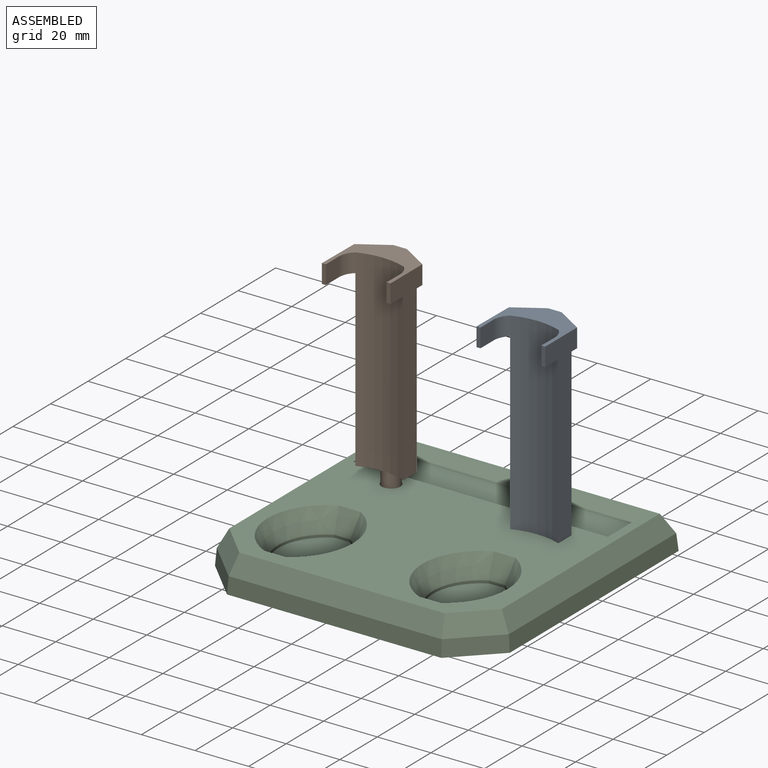
[diagram: assembled view]
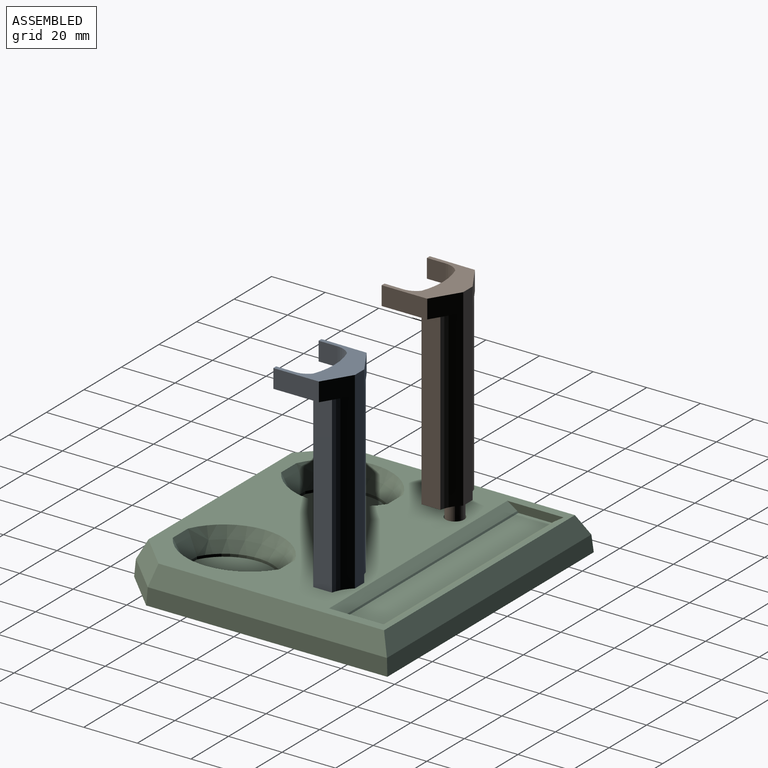
[diagram: assembled view, second angle]
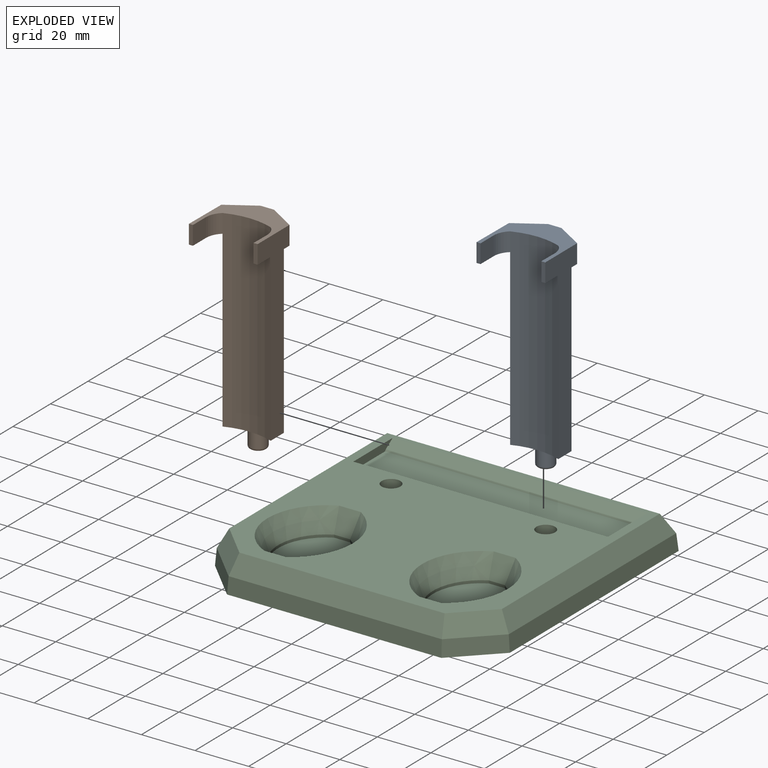
[diagram: exploded view]
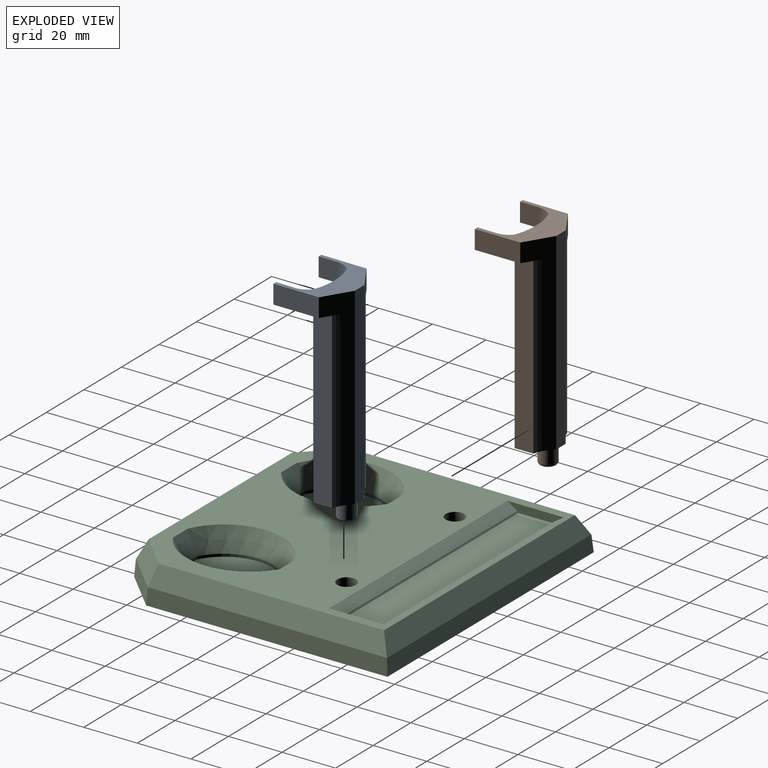
[diagram: exploded view, second angle]
ASSEMBLY  parts=3 mates=2
PART A: 27 faces, bbox 25.6x23.3x79 mm
  f0: plane 72x5mm, normal (0,1,0), area 360mm2, adj f1,f5,f6,f13,f24,f25
  f1: cylinder r=12mm len=65mm, axis (0,0,-1), area 504.9mm2, adj f0,f2,f6,f10
  f2: plane 65x7mm, normal (-1,0,0), area 455mm2, adj f1,f3,f6,f26
  f3: cylinder r=25.25mm len=65mm, axis (0,0,-1), area 1196.3mm2, adj f2,f4,f6,f18,f19
  f4: plane 65x7mm, normal (1,0,0), area 455mm2, adj f3,f5,f6,f11
  f5: cylinder r=12mm len=65mm, axis (0,0,-1), area 504.9mm2, adj f0,f4,f6,f12
  f6: plane 18x11mm, normal (0,0,-1), area 112.4mm2, adj f0,f1,f2,f3,f4,f5,f7
  f7: cylinder r=3.25mm len=6.5mm, axis (0,0,1), area 122.5mm2, adj f6,f9
  f8: plane 4.5x4.5mm, normal (0,0,-1), area 15.9mm2, adj f9
  f9: torus R=2.25mm, axis (0,0,-1), area 28.5mm2, adj f7,f8
  f10: plane 6.5x4mm, normal (0,0,-1), area 3.2mm2, adj f1,f13
  f11: plane 19.29x3.72mm, normal (0,0,-1), area 43.1mm2, adj f4,f20,f21,f22,f23,f24
  f12: plane 6.5x4mm, normal (0,0,-1), area 3.2mm2, adj f5,f24
  f13: plane 10.22x7mm, normal (-0.52,0.85,0), area 84mm2, adj f0,f10,f14,f25,f26
  f14: plane 17x7mm, normal (-1,0.01,0), area 119mm2, adj f13,f15,f25,f26
  f15: plane 7x1.5mm, normal (0,-1,0), area 10.5mm2, adj f14,f16,f25,f26
  f16: plane 7x7mm, normal (1,0,0), area 49mm2, adj f15,f17,f25,f26
  f17: cylinder r=7mm len=7mm, axis (0,0,-1), area 42mm2, adj f16,f18,f25,f26
  f18: cylinder r=25mm len=9mm, axis (0,0,-1), area 64.4mm2, adj f3,f17,f19,f25
  f19: cylinder r=25mm len=9mm, axis (0,0,-1), area 64.4mm2, adj f3,f18,f20,f25
  f20: cylinder r=7mm len=7mm, axis (0,0,-1), area 41.7mm2, adj f11,f19,f21,f25
  f21: plane 7x7mm, normal (-1,0.01,0), area 49mm2, adj f11,f20,f22,f25
  f22: plane 7x1.5mm, normal (0,-1,0), area 10.5mm2, adj f11,f21,f23,f25
  f23: plane 17x7mm, normal (1,0,0), area 119mm2, adj f11,f22,f24,f25
  f24: plane 10.22x7mm, normal (0.52,0.85,0), area 84mm2, adj f0,f11,f12,f23,f25
  f25: plane 25.63x23.29mm, normal (0,0,1), area 238.4mm2, adj f0,f13,f14,f15,f16,f17,f18,f19
  f26: plane 19.29x3.91mm, normal (0,0,-1), area 43.4mm2, adj f2,f13,f14,f15,f16,f17
PART B: same geometry as A
PART C: 51 faces, bbox 110x105x13 mm
  f0: plane 110x6.03mm, normal (0,1,0.09), area 662.3mm2, adj f1,f5,f7,f10
  f1: plane 90x6.03mm, normal (-1,0,0.09), area 542.2mm2, adj f0,f2,f7,f8
  f2: plane 15.22x15.22mm, normal (-0.7,-0.7,0.09), area 127mm2, adj f1,f3,f7,f9
  f3: plane 80x6.03mm, normal (0,-1,0.09), area 482.7mm2, adj f2,f4,f7,f11
  f4: plane 15.22x15.22mm, normal (0.7,-0.7,0.09), area 127mm2, adj f3,f5,f7,f13
  f5: plane 90x6.03mm, normal (1,0,0.09), area 542.2mm2, adj f0,f4,f7,f12
  f6: plane 101.73x96.73mm, normal (0,0,1), area 5614.6mm2, adj f8,f9,f10,f11,f12,f13,f17,f18
  f7: plane 110x105mm, normal (0,0,-1), area 9663.1mm2, adj f0,f1,f2,f3,f4,f5,f25,f27
  f8: plane 89.25x6.97mm, normal (-0.89,0,0.46), area 680.8mm2, adj f1,f6,f9,f10
  f9: plane 16.19x16.19mm, normal (-0.63,-0.63,0.46), area 151.4mm2, adj f2,f6,f8,f11
  f10: plane 108.95x6.97mm, normal (0,0.89,0.46), area 827.1mm2, adj f0,f6,f8,f12
  f11: plane 79.56x6.97mm, normal (0,-0.89,0.46), area 613mm2, adj f3,f6,f9,f13
  f12: plane 89.25x6.97mm, normal (0.89,0,0.46), area 680.8mm2, adj f5,f6,f10,f13
  f13: plane 16.19x16.19mm, normal (0.63,-0.63,0.46), area 151.4mm2, adj f4,f6,f11,f12
  f14: plane 95x0.54mm, normal (0,0.82,0.57), area 62.9mm2, adj f15,f17,f18,f19
  f15: plane 95x12.8mm, normal (0,0,1), area 1215.9mm2, adj f14,f16,f17,f18
  f16: plane 95x0.54mm, normal (0,-0.82,0.57), area 62.9mm2, adj f15,f17,f18,f20
  f17: plane 21x3mm, normal (1,0,0), area 49.6mm2, adj f6,f14,f15,f16,f19,f20
  f18: plane 21x3mm, normal (-1,0,0), area 49.6mm2, adj f6,f14,f15,f16,f19,f20
  f19: plane 95x3.72mm, normal (0,0.55,0.83), area 423.6mm2, adj f6,f14,f17,f18
  f20: plane 95x3.72mm, normal (0,-0.55,0.83), area 423.6mm2, adj f6,f16,f17,f18
  f21: cylinder r=3.5mm len=8mm, axis (0,0,1), area 175.9mm2, adj f6,f22
  f22: plane 7x7mm, normal (0,0,1), area 38.5mm2, adj f21
  f23: cylinder r=3.5mm len=8mm, axis (0,0,1), area 175.9mm2, adj f6,f24
  f24: plane 7x7mm, normal (0,0,1), area 38.5mm2, adj f23
  f25: cylinder r=11.5mm len=23mm, axis (0,0,-1), area 180.6mm2, adj f7,f26
  f26: plane 23x23mm, normal (0,0,-1), area 415.5mm2, adj f25
  f27: cylinder r=11.5mm len=23mm, axis (0,0,-1), area 180.6mm2, adj f7,f28
  f28: plane 23x23mm, normal (0,0,-1), area 415.5mm2, adj f27
  f29: cylinder r=11.5mm len=23mm, axis (0,0,-1), area 180.6mm2, adj f7,f30
  f30: plane 23x23mm, normal (0,0,-1), area 415.5mm2, adj f29
  f31: cylinder r=11.5mm len=23mm, axis (0,0,-1), area 180.6mm2, adj f7,f32
  f32: plane 23x23mm, normal (0,0,-1), area 415.5mm2, adj f31
  f33: cylinder r=17.97mm len=31.87mm, axis (0,0,1), area 39.2mm2, adj f34,f36,f37,f44
  f34: plane 6x1mm, normal (0,1,0), area 6mm2, adj f33,f35,f37,f46
  f35: cylinder r=19.62mm len=31.87mm, axis (0,0,1), area 37.2mm2, adj f34,f36,f37,f45
  f36: plane 6x1mm, normal (0,-1,0), area 6mm2, adj f33,f35,f37,f43
  f37: plane 31.87x23.83mm, normal (0,0,1), area 593.2mm2, adj f33,f34,f35,f36
  f38: cylinder r=19.62mm len=31.87mm, axis (0,0,1), area 37.2mm2, adj f39,f41,f42,f49
  f39: plane 6x1mm, normal (0,-1,0), area 6mm2, adj f38,f40,f42,f47
  f40: cylinder r=17.97mm len=31.87mm, axis (0,0,1), area 39.2mm2, adj f39,f41,f42,f48
  f41: plane 6x1mm, normal (0,1,0), area 6mm2, adj f38,f40,f42,f50
  f42: plane 31.87x23.83mm, normal (0,0,1), area 593.2mm2, adj f38,f39,f40,f41
  f43: plane 8.15x8mm, normal (0,-0.89,0.45), area 63.5mm2, adj f6,f36,f44,f45
  f44: cone r=17.97mm half-angle=26.6deg, axis (0,0,1), area 398.5mm2, adj f6,f33,f43,f46
  f45: cone r=19.62mm half-angle=26.6deg, axis (0,0,1), area 378.4mm2, adj f6,f35,f43,f46
  f46: plane 8.15x8mm, normal (0,0.89,0.45), area 63.5mm2, adj f6,f34,f44,f45
  f47: plane 8.15x8mm, normal (0,-0.89,0.45), area 63.5mm2, adj f6,f39,f48,f49
  f48: cone r=17.97mm half-angle=26.6deg, axis (0,0,1), area 398.5mm2, adj f6,f40,f47,f50
  f49: cone r=19.62mm half-angle=26.6deg, axis (0,0,1), area 378.4mm2, adj f6,f38,f47,f50
  f50: plane 8.15x8mm, normal (0,0.89,0.45), area 63.5mm2, adj f6,f41,f48,f49
PLACE A t=(64.29,5.22,-1.03)mm
PLACE B t=(6.56,5.22,4.84)mm
PLACE C t=(6.56,5.87,-1.16)mm
MATE cylindrical A.f7 <-> C.f21  axis (0,0,1) through (35.42,24.87,5.97)mm
MATE cylindrical B.f7 <-> C.f23  axis (0,0,-1) through (-22.3,24.87,11.84)mm
